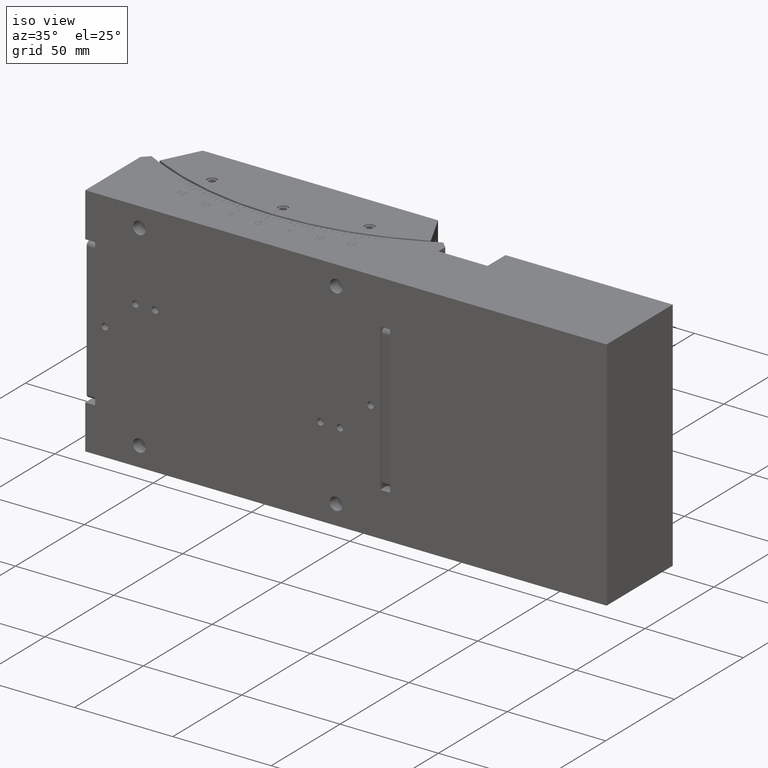
[diagram: clean part render]
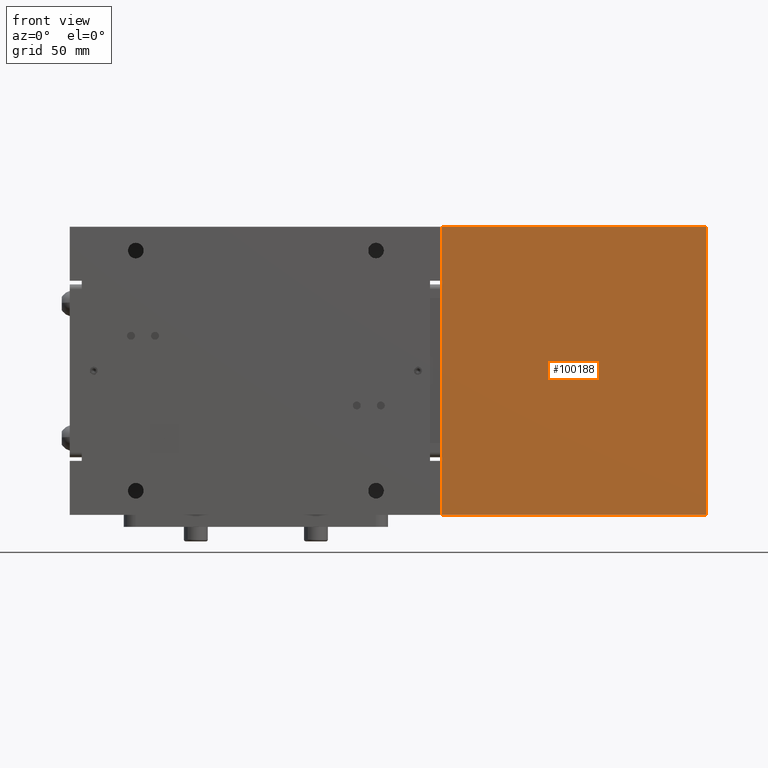
[diagram: tour spotlight — one face highlighted and labeled with its STEP entity id]
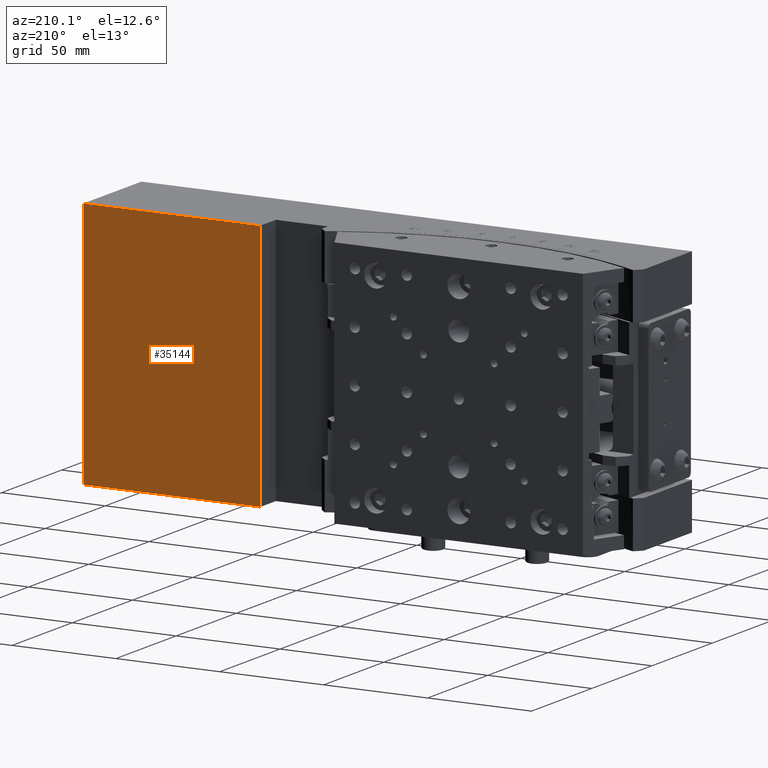
[diagram: tour spotlight — one face highlighted and labeled with its STEP entity id]
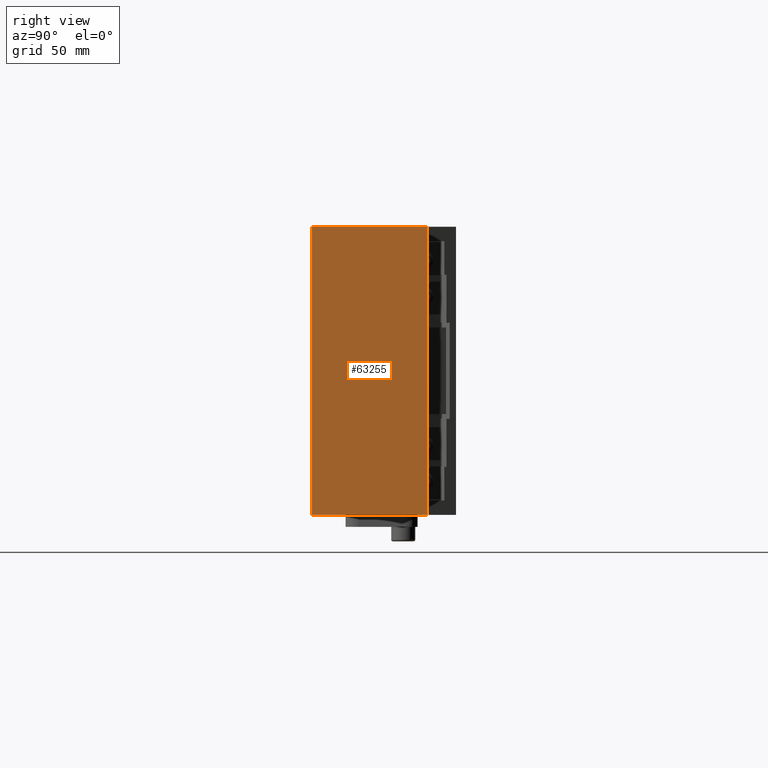
[diagram: tour spotlight — one face highlighted and labeled with its STEP entity id]
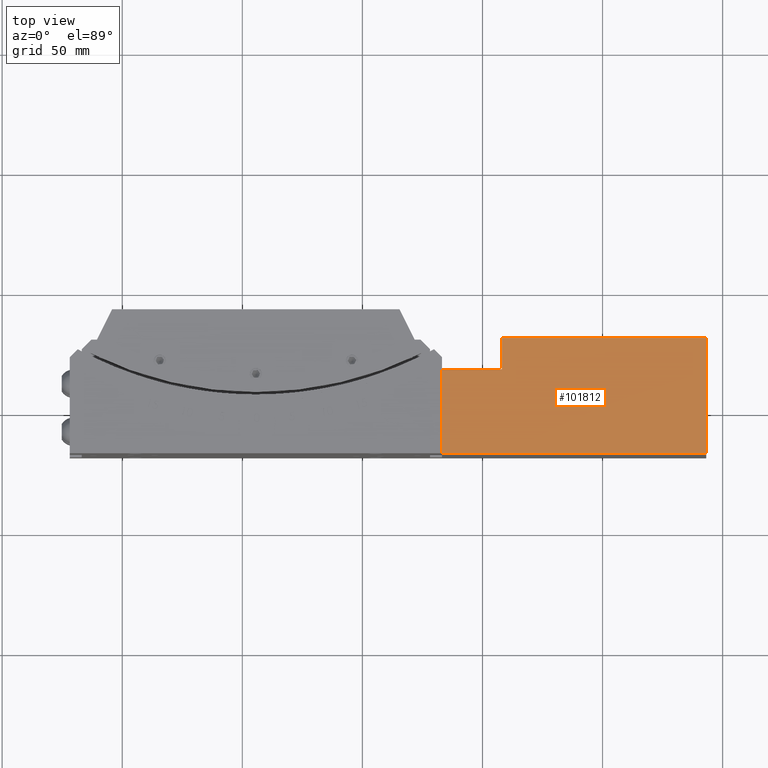
[diagram: tour spotlight — one face highlighted and labeled with its STEP entity id]
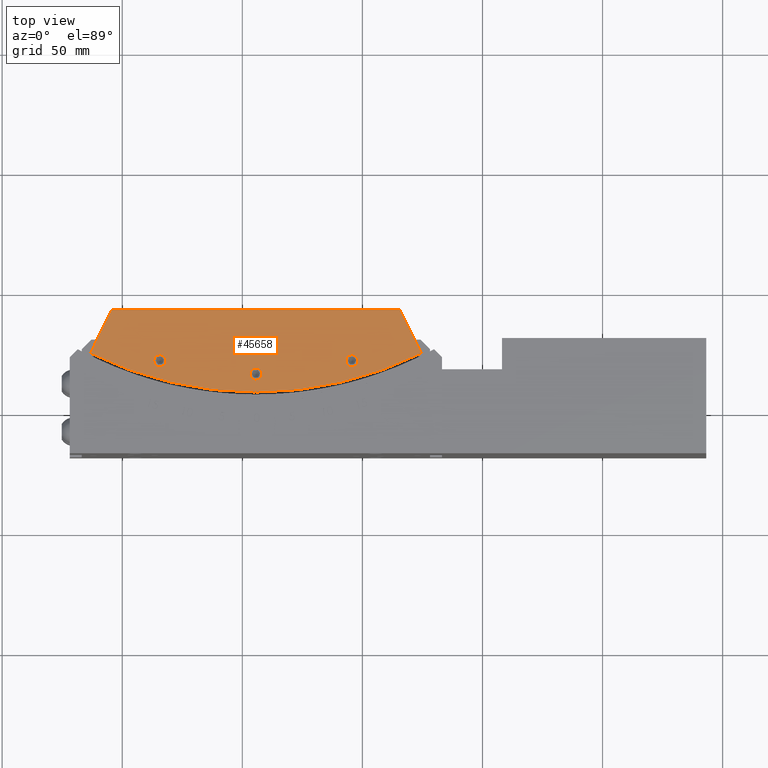
[diagram: tour spotlight — one face highlighted and labeled with its STEP entity id]
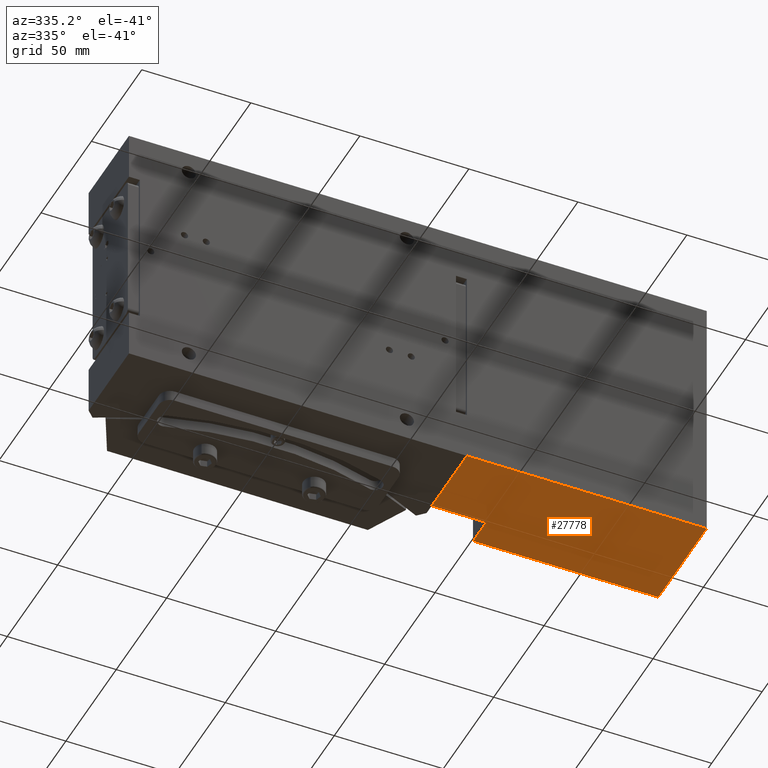
[diagram: tour spotlight — one face highlighted and labeled with its STEP entity id]
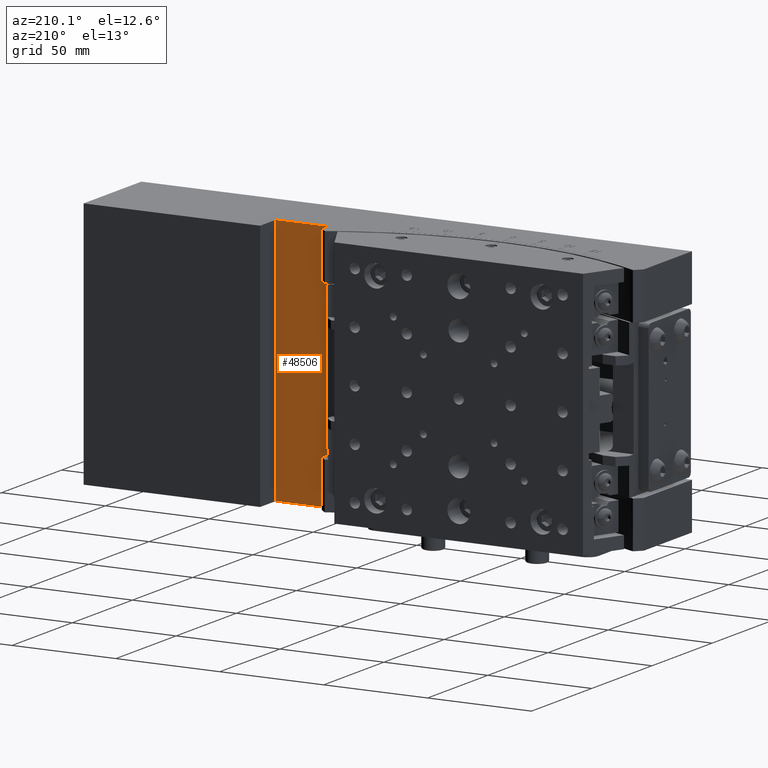
[diagram: tour spotlight — one face highlighted and labeled with its STEP entity id]
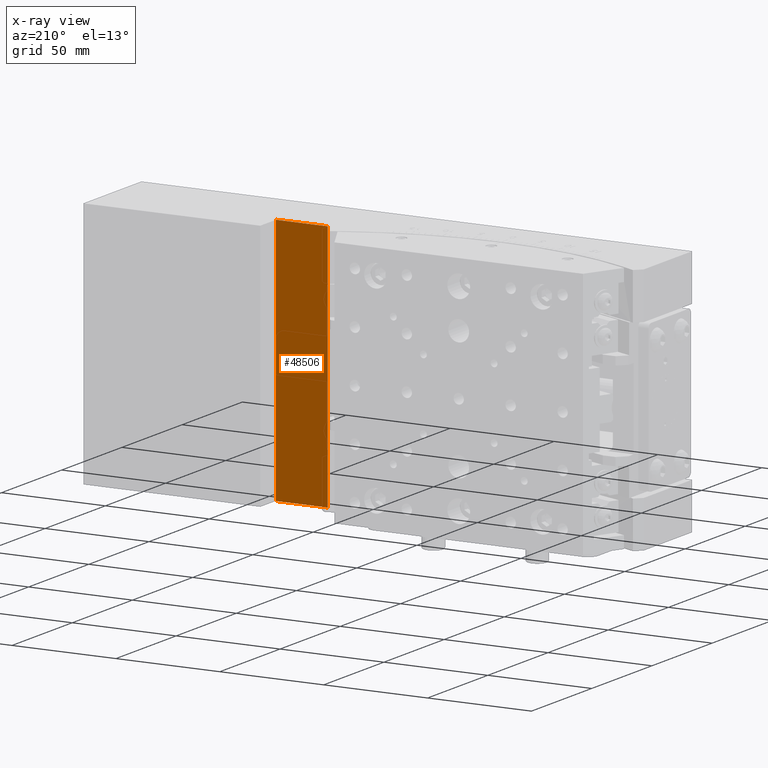
[diagram: x-ray of the same camera — body ghosted, this tour face saturated]
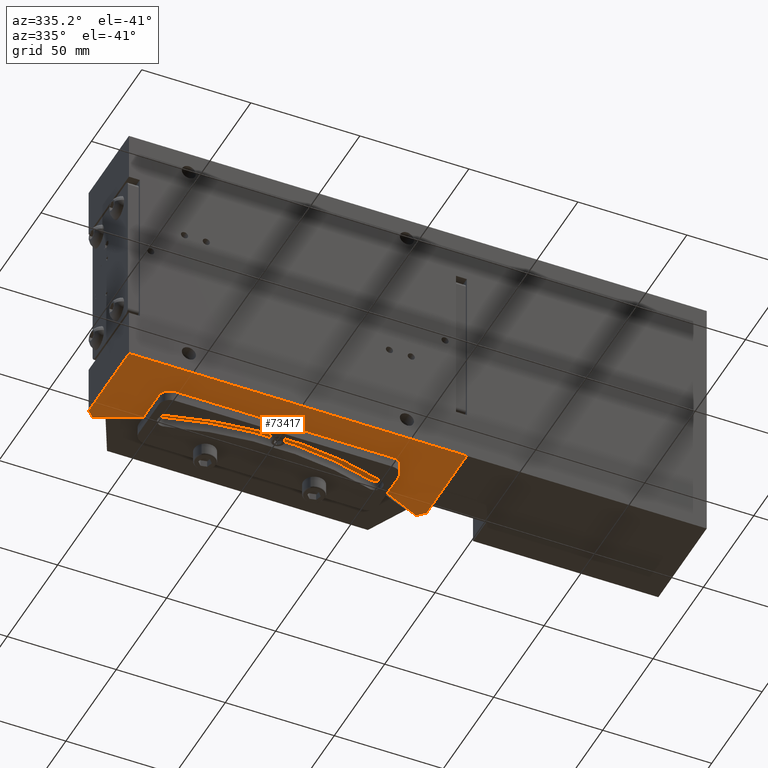
[diagram: tour spotlight — one face highlighted and labeled with its STEP entity id]
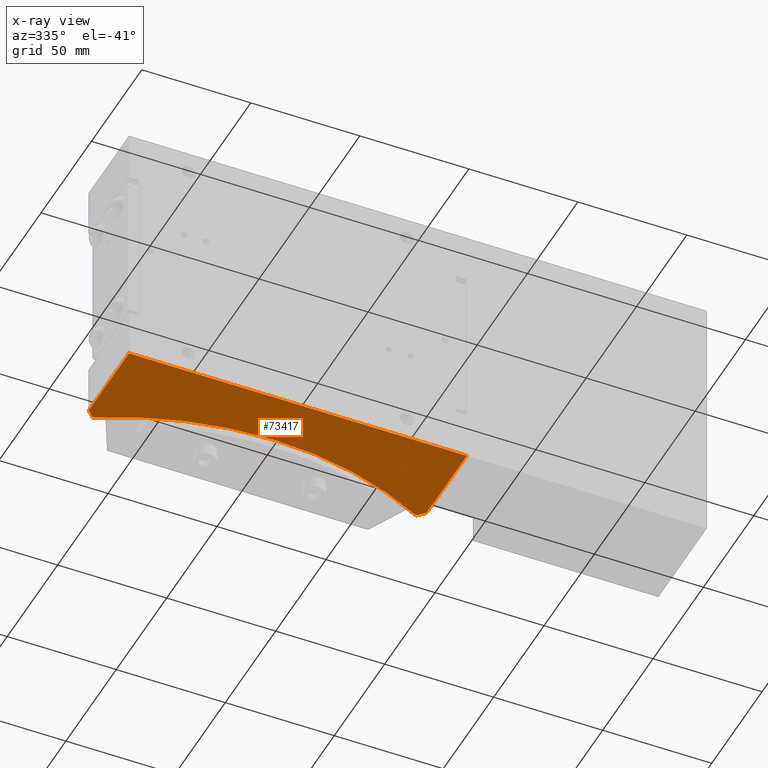
[diagram: x-ray of the same camera — body ghosted, this tour face saturated]
A machine part: a face-by-face anatomy tour. The part has 2984 B-rep faces; the first image is the clean iso view, then the 8 largest visible faces are spotlighted one at a time (largest first), each with its STEP entity span.

Face 1 — front view, entity #100188. In plain terms, the highlighted planar face has unit normal (0, -1, 0).
Definition (entity closure, byte-faithful):
#3468 = DIRECTION ( 'NONE',  ( 0.000000000000000000, 0.000000000000000000, -1.000000000000000000 ) ) ;
#4464 = CARTESIAN_POINT ( 'NONE',  ( -16.85429836251654834, -18.10616229669854960, -54.50124999999999886 ) ) ;
#11474 = FACE_OUTER_BOUND ( 'NONE', #56475, .T. ) ;
#11977 = CARTESIAN_POINT ( 'NONE',  ( -16.85429836251654834, -18.10616229669854960, -54.50124999999999886 ) ) ;
#15427 = VECTOR ( 'NONE', #56605, 1000.000000000000000 ) ;
#18746 = EDGE_CURVE ( 'NONE', #88139, #72945, #54590, .T. ) ;
#23144 = CARTESIAN_POINT ( 'NONE',  ( 93.14570163748341258, -18.10616229669854960, -54.50124999999999886 ) ) ;
#25350 = EDGE_CURVE ( 'NONE', #35237, #88139, #44248, .T. ) ;
#27877 = CARTESIAN_POINT ( 'NONE',  ( -16.85429836251654834, -18.10616229669854960, 65.49875000000000114 ) ) ;
#28013 = DIRECTION ( 'NONE',  ( 0.000000000000000000, 0.000000000000000000, -1.000000000000000000 ) ) ;
#35237 = VERTEX_POINT ( 'NONE', #72875 ) ;
#35617 = DIRECTION ( 'NONE',  ( -1.000000000000000000, 0.000000000000000000, -1.261617073437677999E-16 ) ) ;
#38749 = VECTOR ( 'NONE', #35617, 1000.000000000000000 ) ;
#44248 = LINE ( 'NONE', #4464, #77187 ) ;
#46852 = CARTESIAN_POINT ( 'NONE',  ( -16.85429836251654834, -18.10616229669854960, -54.50124999999999886 ) ) ;
#52370 = ORIENTED_EDGE ( 'NONE', *, *, #86396, .T. ) ;
#53155 = LINE ( 'NONE', #84650, #59038 ) ;
#54590 = LINE ( 'NONE', #46852, #15427 ) ;
#56475 = EDGE_LOOP ( 'NONE', ( #74202, #52370, #96082, #76008 ) ) ;
#56605 = DIRECTION ( 'NONE',  ( 1.000000000000000000, 0.000000000000000000, 1.224646799147351975E-16 ) ) ;
#59038 = VECTOR ( 'NONE', #69683, 1000.000000000000000 ) ;
#67190 = AXIS2_PLACEMENT_3D ( 'NONE', #11977, #67265, #28013 ) ;
#67265 = DIRECTION ( 'NONE',  ( 0.000000000000000000, -1.000000000000000000, 0.000000000000000000 ) ) ;
#69683 = DIRECTION ( 'NONE',  ( 0.000000000000000000, 0.000000000000000000, 1.000000000000000000 ) ) ;
#72875 = CARTESIAN_POINT ( 'NONE',  ( -16.85429836251654834, -18.10616229669854960, 65.49875000000000114 ) ) ;
#72945 = VERTEX_POINT ( 'NONE', #23144 ) ;
#72973 = PLANE ( 'NONE',  #67190 ) ;
#74202 = ORIENTED_EDGE ( 'NONE', *, *, #18746, .T. ) ;
#76008 = ORIENTED_EDGE ( 'NONE', *, *, #25350, .T. ) ;
#76715 = EDGE_CURVE ( 'NONE', #99844, #35237, #82101, .T. ) ;
#77187 = VECTOR ( 'NONE', #3468, 1000.000000000000000 ) ;
#79217 = CARTESIAN_POINT ( 'NONE',  ( -16.85429836251654834, -18.10616229669854960, -54.50124999999999886 ) ) ;
#82101 = LINE ( 'NONE', #27877, #38749 ) ;
#84650 = CARTESIAN_POINT ( 'NONE',  ( 93.14570163748341258, -18.10616229669854960, -54.50124999999999886 ) ) ;
#86396 = EDGE_CURVE ( 'NONE', #72945, #99844, #53155, .T. ) ;
#87527 = CARTESIAN_POINT ( 'NONE',  ( 93.14570163748341258, -18.10616229669854960, 65.49875000000000114 ) ) ;
#88139 = VERTEX_POINT ( 'NONE', #79217 ) ;
#96082 = ORIENTED_EDGE ( 'NONE', *, *, #76715, .T. ) ;
#99844 = VERTEX_POINT ( 'NONE', #87527 ) ;
#100188 = ADVANCED_FACE ( 'NONE', ( #11474 ), #72973, .T. ) ;

Face 2 — auxiliary view, entity #35144. In plain terms, the highlighted planar face has unit normal (0, -1, 0).
Definition (entity closure, byte-faithful):
#544 = PLANE ( 'NONE',  #89025 ) ;
#3922 = CARTESIAN_POINT ( 'NONE',  ( -16.85429836251654834, 29.89383770330144685, 65.49875000000000114 ) ) ;
#7272 = VERTEX_POINT ( 'NONE', #55581 ) ;
#7967 = CARTESIAN_POINT ( 'NONE',  ( -16.85429836251654834, 29.89383770330144685, -54.50124999999999886 ) ) ;
#13286 = EDGE_CURVE ( 'NONE', #31645, #68671, #43202, .T. ) ;
#15329 = ORIENTED_EDGE ( 'NONE', *, *, #73190, .F. ) ;
#21464 = EDGE_CURVE ( 'NONE', #101499, #31645, #65788, .T. ) ;
#23444 = DIRECTION ( 'NONE',  ( 1.000000000000000000, 0.000000000000000000, 1.224646799147351975E-16 ) ) ;
#26504 = CARTESIAN_POINT ( 'NONE',  ( 93.14570163748341258, 29.89383770330144685, -54.50124999999999886 ) ) ;
#27528 = DIRECTION ( 'NONE',  ( 0.000000000000000000, 0.000000000000000000, 1.000000000000000000 ) ) ;
#31645 = VERTEX_POINT ( 'NONE', #60932 ) ;
#34027 = VECTOR ( 'NONE', #27528, 1000.000000000000000 ) ;
#35144 = ADVANCED_FACE ( 'NONE', ( #39837 ), #544, .F. ) ;
#39406 = VECTOR ( 'NONE', #75724, 1000.000000000000000 ) ;
#39837 = FACE_OUTER_BOUND ( 'NONE', #81199, .T. ) ;
#43202 = LINE ( 'NONE', #3922, #39406 ) ;
#47749 = LINE ( 'NONE', #7967, #62956 ) ;
#52440 = EDGE_CURVE ( 'NONE', #7272, #68671, #100848, .T. ) ;
#54811 = DIRECTION ( 'NONE',  ( 0.000000000000000000, -1.000000000000000000, 0.000000000000000000 ) ) ;
#55581 = CARTESIAN_POINT ( 'NONE',  ( 8.145701637483439228, 29.89383770330144685, -54.50124999999999886 ) ) ;
#56694 = VECTOR ( 'NONE', #94579, 1000.000000000000000 ) ;
#57927 = ORIENTED_EDGE ( 'NONE', *, *, #21464, .F. ) ;
#60932 = CARTESIAN_POINT ( 'NONE',  ( 93.14570163748341258, 29.89383770330144685, 65.49875000000000114 ) ) ;
#62956 = VECTOR ( 'NONE', #23444, 1000.000000000000000 ) ;
#65176 = ORIENTED_EDGE ( 'NONE', *, *, #13286, .F. ) ;
#65788 = LINE ( 'NONE', #26504, #34027 ) ;
#68671 = VERTEX_POINT ( 'NONE', #78771 ) ;
#68721 = ORIENTED_EDGE ( 'NONE', *, *, #52440, .T. ) ;
#69837 = CARTESIAN_POINT ( 'NONE',  ( 8.145701637483439228, 29.89383770330144685, -54.50124999999999886 ) ) ;
#70330 = CARTESIAN_POINT ( 'NONE',  ( -16.85429836251654834, 29.89383770330144685, -54.50124999999999886 ) ) ;
#73190 = EDGE_CURVE ( 'NONE', #7272, #101499, #47749, .T. ) ;
#75724 = DIRECTION ( 'NONE',  ( -1.000000000000000000, 0.000000000000000000, -1.261617073437677999E-16 ) ) ;
#77587 = DIRECTION ( 'NONE',  ( 0.000000000000000000, 0.000000000000000000, -1.000000000000000000 ) ) ;
#78771 = CARTESIAN_POINT ( 'NONE',  ( 8.145701637483430346, 29.89383770330144685, 65.49875000000000114 ) ) ;
#81199 = EDGE_LOOP ( 'NONE', ( #15329, #68721, #65176, #57927 ) ) ;
#83640 = CARTESIAN_POINT ( 'NONE',  ( 93.14570163748341258, 29.89383770330144685, -54.50124999999999886 ) ) ;
#89025 = AXIS2_PLACEMENT_3D ( 'NONE', #70330, #54811, #77587 ) ;
#94579 = DIRECTION ( 'NONE',  ( -1.261617073437677999E-16, 0.000000000000000000, 1.000000000000000000 ) ) ;
#100848 = LINE ( 'NONE', #69837, #56694 ) ;
#101499 = VERTEX_POINT ( 'NONE', #83640 ) ;

Face 3 — right view, entity #63255. In plain terms, the highlighted planar face has unit normal (-1, 0, 0).
Definition (entity closure, byte-faithful):
#6683 = DIRECTION ( 'NONE',  ( -1.000000000000000000, 0.000000000000000000, 0.000000000000000000 ) ) ;
#18336 = AXIS2_PLACEMENT_3D ( 'NONE', #93442, #6683, #70214 ) ;
#21464 = EDGE_CURVE ( 'NONE', #101499, #31645, #65788, .T. ) ;
#23144 = CARTESIAN_POINT ( 'NONE',  ( 93.14570163748341258, -18.10616229669854960, -54.50124999999999886 ) ) ;
#24387 = ORIENTED_EDGE ( 'NONE', *, *, #58365, .F. ) ;
#26504 = CARTESIAN_POINT ( 'NONE',  ( 93.14570163748341258, 29.89383770330144685, -54.50124999999999886 ) ) ;
#27507 = DIRECTION ( 'NONE',  ( 0.000000000000000000, 1.000000000000000000, 0.000000000000000000 ) ) ;
#27528 = DIRECTION ( 'NONE',  ( 0.000000000000000000, 0.000000000000000000, 1.000000000000000000 ) ) ;
#31489 = VECTOR ( 'NONE', #34431, 1000.000000000000000 ) ;
#31645 = VERTEX_POINT ( 'NONE', #60932 ) ;
#34027 = VECTOR ( 'NONE', #27528, 1000.000000000000000 ) ;
#34431 = DIRECTION ( 'NONE',  ( 0.000000000000000000, 1.000000000000000000, 0.000000000000000000 ) ) ;
#41482 = ORIENTED_EDGE ( 'NONE', *, *, #86396, .F. ) ;
#46939 = EDGE_CURVE ( 'NONE', #72945, #101499, #66431, .T. ) ;
#47468 = VECTOR ( 'NONE', #27507, 1000.000000000000000 ) ;
#53155 = LINE ( 'NONE', #84650, #59038 ) ;
#58365 = EDGE_CURVE ( 'NONE', #99844, #31645, #84293, .T. ) ;
#59038 = VECTOR ( 'NONE', #69683, 1000.000000000000000 ) ;
#59336 = EDGE_LOOP ( 'NONE', ( #83390, #24387, #41482, #80130 ) ) ;
#60932 = CARTESIAN_POINT ( 'NONE',  ( 93.14570163748341258, 29.89383770330144685, 65.49875000000000114 ) ) ;
#62478 = FACE_OUTER_BOUND ( 'NONE', #59336, .T. ) ;
#63255 = ADVANCED_FACE ( 'NONE', ( #62478 ), #77471, .F. ) ;
#65788 = LINE ( 'NONE', #26504, #34027 ) ;
#66431 = LINE ( 'NONE', #97926, #31489 ) ;
#69683 = DIRECTION ( 'NONE',  ( 0.000000000000000000, 0.000000000000000000, 1.000000000000000000 ) ) ;
#70214 = DIRECTION ( 'NONE',  ( 0.000000000000000000, 0.000000000000000000, 1.000000000000000000 ) ) ;
#72945 = VERTEX_POINT ( 'NONE', #23144 ) ;
#77471 = PLANE ( 'NONE',  #18336 ) ;
#80130 = ORIENTED_EDGE ( 'NONE', *, *, #46939, .T. ) ;
#83390 = ORIENTED_EDGE ( 'NONE', *, *, #21464, .T. ) ;
#83640 = CARTESIAN_POINT ( 'NONE',  ( 93.14570163748341258, 29.89383770330144685, -54.50124999999999886 ) ) ;
#83771 = CARTESIAN_POINT ( 'NONE',  ( 93.14570163748341258, -18.10616229669854960, 65.49875000000000114 ) ) ;
#84293 = LINE ( 'NONE', #83771, #47468 ) ;
#84650 = CARTESIAN_POINT ( 'NONE',  ( 93.14570163748341258, -18.10616229669854960, -54.50124999999999886 ) ) ;
#86396 = EDGE_CURVE ( 'NONE', #72945, #99844, #53155, .T. ) ;
#87527 = CARTESIAN_POINT ( 'NONE',  ( 93.14570163748341258, -18.10616229669854960, 65.49875000000000114 ) ) ;
#93442 = CARTESIAN_POINT ( 'NONE',  ( 93.14570163748341258, -18.10616229669854960, -54.50124999999999886 ) ) ;
#97926 = CARTESIAN_POINT ( 'NONE',  ( 93.14570163748341258, -18.10616229669854960, -54.50124999999999886 ) ) ;
#99844 = VERTEX_POINT ( 'NONE', #87527 ) ;
#101499 = VERTEX_POINT ( 'NONE', #83640 ) ;

Face 4 — top view, entity #101812. In plain terms, the highlighted planar face has unit normal (0, 0, -1).
Definition (entity closure, byte-faithful):
#3922 = CARTESIAN_POINT ( 'NONE',  ( -16.85429836251654834, 29.89383770330144685, 65.49875000000000114 ) ) ;
#6225 = CARTESIAN_POINT ( 'NONE',  ( -16.85429836251654834, -18.10616229669854960, 65.49875000000000114 ) ) ;
#7396 = DIRECTION ( 'NONE',  ( 1.000000000000000000, 1.387778780781445922E-16, 0.000000000000000000 ) ) ;
#11013 = EDGE_LOOP ( 'NONE', ( #25738, #16633, #20819, #51161, #42564, #63157 ) ) ;
#12620 = EDGE_CURVE ( 'NONE', #35237, #54821, #70772, .T. ) ;
#13063 = AXIS2_PLACEMENT_3D ( 'NONE', #82525, #90257, #33503 ) ;
#13286 = EDGE_CURVE ( 'NONE', #31645, #68671, #43202, .T. ) ;
#15604 = VERTEX_POINT ( 'NONE', #54030 ) ;
#16633 = ORIENTED_EDGE ( 'NONE', *, *, #52231, .F. ) ;
#18493 = PLANE ( 'NONE',  #13063 ) ;
#19556 = VECTOR ( 'NONE', #101265, 1000.000000000000000 ) ;
#20819 = ORIENTED_EDGE ( 'NONE', *, *, #32789, .F. ) ;
#23413 = DIRECTION ( 'NONE',  ( 0.000000000000000000, 1.000000000000000000, 0.000000000000000000 ) ) ;
#25738 = ORIENTED_EDGE ( 'NONE', *, *, #13286, .T. ) ;
#27507 = DIRECTION ( 'NONE',  ( 0.000000000000000000, 1.000000000000000000, 0.000000000000000000 ) ) ;
#27877 = CARTESIAN_POINT ( 'NONE',  ( -16.85429836251654834, -18.10616229669854960, 65.49875000000000114 ) ) ;
#31645 = VERTEX_POINT ( 'NONE', #60932 ) ;
#32789 = EDGE_CURVE ( 'NONE', #54821, #15604, #39918, .T. ) ;
#33503 = DIRECTION ( 'NONE',  ( 0.000000000000000000, -1.000000000000000000, 0.000000000000000000 ) ) ;
#35237 = VERTEX_POINT ( 'NONE', #72875 ) ;
#35617 = DIRECTION ( 'NONE',  ( -1.000000000000000000, 0.000000000000000000, -1.261617073437677999E-16 ) ) ;
#38749 = VECTOR ( 'NONE', #35617, 1000.000000000000000 ) ;
#39406 = VECTOR ( 'NONE', #75724, 1000.000000000000000 ) ;
#39918 = LINE ( 'NONE', #63686, #44139 ) ;
#42564 = ORIENTED_EDGE ( 'NONE', *, *, #76715, .F. ) ;
#43202 = LINE ( 'NONE', #3922, #39406 ) ;
#44139 = VECTOR ( 'NONE', #7396, 1000.000000000000000 ) ;
#47468 = VECTOR ( 'NONE', #27507, 1000.000000000000000 ) ;
#51161 = ORIENTED_EDGE ( 'NONE', *, *, #12620, .F. ) ;
#52231 = EDGE_CURVE ( 'NONE', #15604, #68671, #55946, .T. ) ;
#54030 = CARTESIAN_POINT ( 'NONE',  ( 8.145701637483430346, 16.89383770330145040, 65.49875000000000114 ) ) ;
#54821 = VERTEX_POINT ( 'NONE', #86103 ) ;
#55946 = LINE ( 'NONE', #94191, #74868 ) ;
#58365 = EDGE_CURVE ( 'NONE', #99844, #31645, #84293, .T. ) ;
#60932 = CARTESIAN_POINT ( 'NONE',  ( 93.14570163748341258, 29.89383770330144685, 65.49875000000000114 ) ) ;
#63157 = ORIENTED_EDGE ( 'NONE', *, *, #58365, .T. ) ;
#63686 = CARTESIAN_POINT ( 'NONE',  ( -16.85429836251660163, 16.89383770330145040, 65.49875000000000114 ) ) ;
#68671 = VERTEX_POINT ( 'NONE', #78771 ) ;
#70772 = LINE ( 'NONE', #6225, #19556 ) ;
#72875 = CARTESIAN_POINT ( 'NONE',  ( -16.85429836251654834, -18.10616229669854960, 65.49875000000000114 ) ) ;
#74771 = FACE_OUTER_BOUND ( 'NONE', #11013, .T. ) ;
#74868 = VECTOR ( 'NONE', #23413, 1000.000000000000000 ) ;
#75724 = DIRECTION ( 'NONE',  ( -1.000000000000000000, 0.000000000000000000, -1.261617073437677999E-16 ) ) ;
#76715 = EDGE_CURVE ( 'NONE', #99844, #35237, #82101, .T. ) ;
#78771 = CARTESIAN_POINT ( 'NONE',  ( 8.145701637483430346, 29.89383770330144685, 65.49875000000000114 ) ) ;
#82101 = LINE ( 'NONE', #27877, #38749 ) ;
#82525 = CARTESIAN_POINT ( 'NONE',  ( -16.85429836251654834, -18.10616229669854960, 65.49875000000000114 ) ) ;
#83771 = CARTESIAN_POINT ( 'NONE',  ( 93.14570163748341258, -18.10616229669854960, 65.49875000000000114 ) ) ;
#84293 = LINE ( 'NONE', #83771, #47468 ) ;
#86103 = CARTESIAN_POINT ( 'NONE',  ( -16.85429836251660163, 16.89383770330145040, 65.49875000000000114 ) ) ;
#87527 = CARTESIAN_POINT ( 'NONE',  ( 93.14570163748341258, -18.10616229669854960, 65.49875000000000114 ) ) ;
#90257 = DIRECTION ( 'NONE',  ( 1.261617073437677999E-16, 0.000000000000000000, -1.000000000000000000 ) ) ;
#94191 = CARTESIAN_POINT ( 'NONE',  ( 8.145701637483430346, 29.89383770330144685, 65.49875000000000114 ) ) ;
#99844 = VERTEX_POINT ( 'NONE', #87527 ) ;
#101265 = DIRECTION ( 'NONE',  ( 0.000000000000000000, 1.000000000000000000, 0.000000000000000000 ) ) ;
#101812 = ADVANCED_FACE ( 'NONE', ( #74771 ), #18493, .F. ) ;

Face 5 — top view, entity #45658. In plain terms, the highlighted planar face has unit normal (0, -0, 1).
Definition (entity closure, byte-faithful):
#163 = CIRCLE ( 'NONE', #100789, 154.4999999999999432 ) ;
#289 = CARTESIAN_POINT ( 'NONE',  ( -134.3598981322944041, 20.44224885729239816, 65.49875000000000114 ) ) ;
#1010 = VERTEX_POINT ( 'NONE', #30794 ) ;
#1721 = VECTOR ( 'NONE', #15102, 1000.000000000000227 ) ;
#2036 = CARTESIAN_POINT ( 'NONE',  ( -25.42220997326289833, 23.62374986686385014, 65.49875000000000114 ) ) ;
#2566 = VECTOR ( 'NONE', #98212, 1000.000000000000227 ) ;
#2776 = CARTESIAN_POINT ( 'NONE',  ( -54.35989819498179543, 20.43908184391320049, 65.49875000000000114 ) ) ;
#4180 = LINE ( 'NONE', #82196, #2566 ) ;
#4479 = EDGE_CURVE ( 'NONE', #58223, #23777, #81060, .T. ) ;
#4895 = CIRCLE ( 'NONE', #62655, 2.499999999999992895 ) ;
#5717 = VERTEX_POINT ( 'NONE', #50472 ) ;
#7610 = FACE_OUTER_BOUND ( 'NONE', #32432, .T. ) ;
#8112 = CARTESIAN_POINT ( 'NONE',  ( -54.35989819498179543, 20.43908184391320049, 65.49875000000000114 ) ) ;
#9637 = DIRECTION ( 'NONE',  ( -0.4462332411238810748, -0.8949166969702130325, -1.118870530352859933E-23 ) ) ;
#10108 = ORIENTED_EDGE ( 'NONE', *, *, #29299, .F. ) ;
#10139 = CARTESIAN_POINT ( 'NONE',  ( -154.1888418021150073, 41.89620631926730709, 65.49875000000000114 ) ) ;
#11308 = ORIENTED_EDGE ( 'NONE', *, *, #58706, .F. ) ;
#11312 = VECTOR ( 'NONE', #65137, 1000.000000000000227 ) ;
#11953 = CARTESIAN_POINT ( 'NONE',  ( -94.46041465574560902, 7.393874145595839664, 65.49875000000000114 ) ) ;
#13696 = DIRECTION ( 'NONE',  ( 0.9999999992164083640, -3.958766723997548284E-05, 0.000000000000000000 ) ) ;
#15102 = DIRECTION ( 'NONE',  ( -3.958766724046195758E-05, -0.9999999992164082530, -1.713813869590605198E-23 ) ) ;
#15615 = VERTEX_POINT ( 'NONE', #23027 ) ;
#18175 = EDGE_CURVE ( 'NONE', #72509, #66182, #79645, .T. ) ;
#21590 = FACE_BOUND ( 'NONE', #94937, .T. ) ;
#23027 = CARTESIAN_POINT ( 'NONE',  ( -94.46021663948359048, 12.39584257985405991, 65.49875000000000114 ) ) ;
#23777 = VERTEX_POINT ( 'NONE', #2036 ) ;
#24243 = CARTESIAN_POINT ( 'NONE',  ( -34.52925596305554734, 41.89146927539730569, 65.49875000000000114 ) ) ;
#26040 = DIRECTION ( 'NONE',  ( -1.317994238828538081E-27, -3.329305133844140033E-23, 1.000000000000000000 ) ) ;
#27072 = DIRECTION ( 'NONE',  ( 0.9999999992164083640, -3.958766723997548284E-05, 0.000000000000000000 ) ) ;
#29002 = ORIENTED_EDGE ( 'NONE', *, *, #47060, .T. ) ;
#29299 = EDGE_CURVE ( 'NONE', #1010, #15615, #51144, .T. ) ;
#29368 = DIRECTION ( 'NONE',  ( 9.296808944512080757E-24, -3.329341942959690561E-23, 1.000000000000000000 ) ) ;
#30255 = VERTEX_POINT ( 'NONE', #11953 ) ;
#30609 = CARTESIAN_POINT ( 'NONE',  ( -94.36011774960090293, 14.89383781848927946, 65.49875000000000114 ) ) ;
#30794 = CARTESIAN_POINT ( 'NONE',  ( -96.86011774764190818, 14.89393678765738116, 65.49875000000000114 ) ) ;
#31341 = AXIS2_PLACEMENT_3D ( 'NONE', #77384, #29368, #31413 ) ;
#31413 = DIRECTION ( 'NONE',  ( 0.000000000000000000, -1.000000000000000000, -3.329341942959690561E-23 ) ) ;
#31713 = CARTESIAN_POINT ( 'NONE',  ( -51.85989819694080438, 20.43898287474510056, 65.49875000000000114 ) ) ;
#32046 = DIRECTION ( 'NONE',  ( -1.317994238828540054E-27, -3.329305133844140033E-23, 1.000000000000000000 ) ) ;
#32386 = AXIS2_PLACEMENT_3D ( 'NONE', #8112, #55595, #87108 ) ;
#32432 = EDGE_LOOP ( 'NONE', ( #41076, #55710, #39480, #42469, #35342, #78586, #29002, #87712, #10108, #45244 ) ) ;
#34097 = CARTESIAN_POINT ( 'NONE',  ( -154.1888418021150073, 41.89620631926730709, 65.49875000000000114 ) ) ;
#34688 = DIRECTION ( 'NONE',  ( 0.9999999992164083640, -3.958766724015972267E-05, 0.000000000000000000 ) ) ;
#35175 = CARTESIAN_POINT ( 'NONE',  ( -134.3598981322944041, 20.44224885729239816, 65.49875000000000114 ) ) ;
#35218 = EDGE_CURVE ( 'NONE', #62970, #69036, #96110, .T. ) ;
#35342 = ORIENTED_EDGE ( 'NONE', *, *, #35218, .T. ) ;
#36675 = VERTEX_POINT ( 'NONE', #50653 ) ;
#36716 = EDGE_CURVE ( 'NONE', #83962, #88799, #4895, .T. ) ;
#36751 = VECTOR ( 'NONE', #95013, 1000.000000000000000 ) ;
#37954 = CARTESIAN_POINT ( 'NONE',  ( -94.26041465590239454, 7.393866228062390356, 65.49875000000000114 ) ) ;
#39156 = EDGE_CURVE ( 'NONE', #98287, #5717, #64834, .T. ) ;
#39357 = EDGE_CURVE ( 'NONE', #23777, #62970, #47017, .T. ) ;
#39390 = EDGE_CURVE ( 'NONE', #66182, #1010, #94454, .T. ) ;
#39480 = ORIENTED_EDGE ( 'NONE', *, *, #4479, .T. ) ;
#40369 = DIRECTION ( 'NONE',  ( 0.9999999992164083640, -3.958766724015972267E-05, 0.000000000000000000 ) ) ;
#41076 = ORIENTED_EDGE ( 'NONE', *, *, #18175, .F. ) ;
#41208 = ORIENTED_EDGE ( 'NONE', *, *, #36716, .F. ) ;
#42469 = ORIENTED_EDGE ( 'NONE', *, *, #39357, .T. ) ;
#43377 = AXIS2_PLACEMENT_3D ( 'NONE', #2776, #26040, #73048 ) ;
#43449 = CARTESIAN_POINT ( 'NONE',  ( -94.36011774960090293, 14.89383781848927946, 65.49875000000000114 ) ) ;
#45244 = ORIENTED_EDGE ( 'NONE', *, *, #39390, .F. ) ;
#45658 = ADVANCED_FACE ( 'NONE', ( #21590, #93358, #7610 ), #93871, .T. ) ;
#47017 = LINE ( 'NONE', #24243, #36751 ) ;
#47060 = EDGE_CURVE ( 'NONE', #36675, #30255, #163, .T. ) ;
#47793 = ORIENTED_EDGE ( 'NONE', *, *, #54963, .F. ) ;
#48104 = EDGE_CURVE ( 'NONE', #69036, #36675, #80912, .T. ) ;
#49822 = DIRECTION ( 'NONE',  ( -1.317994238822410035E-27, -3.329305133844145323E-23, 1.000000000000000000 ) ) ;
#50332 = CARTESIAN_POINT ( 'NONE',  ( -94.35429836251660163, 161.8938377033014717, 65.49875000000000114 ) ) ;
#50472 = CARTESIAN_POINT ( 'NONE',  ( -56.85989819302280068, 20.43918081308129686, 65.49875000000000114 ) ) ;
#50653 = CARTESIAN_POINT ( 'NONE',  ( -163.2973341161564917, 23.62920802140344634, 65.49875000000000114 ) ) ;
#51144 = CIRCLE ( 'NONE', #89015, 2.499999999999992895 ) ;
#51207 = DIRECTION ( 'NONE',  ( -1.317994238828540054E-27, -3.329305133844140033E-23, 1.000000000000000000 ) ) ;
#51929 = DIRECTION ( 'NONE',  ( -1.317994238822410035E-27, -3.329305133844145323E-23, 1.000000000000000000 ) ) ;
#54559 = DIRECTION ( 'NONE',  ( -1.317994238828540054E-27, -3.329305133844140033E-23, 1.000000000000000000 ) ) ;
#54963 = EDGE_CURVE ( 'NONE', #5717, #98287, #78550, .T. ) ;
#55595 = DIRECTION ( 'NONE',  ( -1.317994238828538081E-27, -3.329305133844140033E-23, 1.000000000000000000 ) ) ;
#55710 = ORIENTED_EDGE ( 'NONE', *, *, #69975, .T. ) ;
#58223 = VERTEX_POINT ( 'NONE', #37954 ) ;
#58706 = EDGE_CURVE ( 'NONE', #88799, #83962, #88756, .T. ) ;
#61542 = AXIS2_PLACEMENT_3D ( 'NONE', #64046, #32046, #72299 ) ;
#62105 = DIRECTION ( 'NONE',  ( -1.317994238828540054E-27, -3.329305133844140033E-23, 1.000000000000000000 ) ) ;
#62655 = AXIS2_PLACEMENT_3D ( 'NONE', #35175, #95621, #34688 ) ;
#62970 = VERTEX_POINT ( 'NONE', #89377 ) ;
#64046 = CARTESIAN_POINT ( 'NONE',  ( -94.36011774960090293, 14.89383781848927946, 65.49875000000000114 ) ) ;
#64834 = CIRCLE ( 'NONE', #43377, 2.500000000000000000 ) ;
#64844 = AXIS2_PLACEMENT_3D ( 'NONE', #30609, #62105, #40369 ) ;
#65137 = DIRECTION ( 'NONE',  ( -0.9999999992164082530, 3.958766723994136435E-05, 9.298126946036841525E-24 ) ) ;
#66182 = VERTEX_POINT ( 'NONE', #79625 ) ;
#67937 = VECTOR ( 'NONE', #9637, 1000.000000000000227 ) ;
#69036 = VERTEX_POINT ( 'NONE', #34097 ) ;
#69975 = EDGE_CURVE ( 'NONE', #72509, #58223, #99329, .T. ) ;
#71936 = ORIENTED_EDGE ( 'NONE', *, *, #39156, .F. ) ;
#72299 = DIRECTION ( 'NONE',  ( 0.9999999992164083640, -3.958766724015972267E-05, 0.000000000000000000 ) ) ;
#72509 = VERTEX_POINT ( 'NONE', #93144 ) ;
#73048 = DIRECTION ( 'NONE',  ( 0.9999999992164083640, -3.958766724015960747E-05, 0.000000000000000000 ) ) ;
#75461 = CARTESIAN_POINT ( 'NONE',  ( -136.8598981303353810, 20.44234782646050164, 65.49875000000000114 ) ) ;
#77384 = CARTESIAN_POINT ( 'NONE',  ( -94.35429836251660163, 161.8938377033014717, 65.49875000000000114 ) ) ;
#78550 = CIRCLE ( 'NONE', #32386, 2.500000000000000000 ) ;
#78586 = ORIENTED_EDGE ( 'NONE', *, *, #48104, .T. ) ;
#79625 = CARTESIAN_POINT ( 'NONE',  ( -91.86011775155979819, 14.89373884932117953, 65.49875000000000114 ) ) ;
#79645 = CIRCLE ( 'NONE', #64844, 2.499999999999992895 ) ;
#80912 = LINE ( 'NONE', #10139, #67937 ) ;
#81060 = CIRCLE ( 'NONE', #94234, 154.4999999999999432 ) ;
#82196 = CARTESIAN_POINT ( 'NONE',  ( -94.46009795440770063, 15.39387413932709947, 65.49875000000000114 ) ) ;
#83735 = EDGE_CURVE ( 'NONE', #30255, #15615, #4180, .T. ) ;
#83962 = VERTEX_POINT ( 'NONE', #75461 ) ;
#84460 = CARTESIAN_POINT ( 'NONE',  ( -94.35429836251660163, 161.8938377033014717, 65.49875000000000114 ) ) ;
#84732 = DIRECTION ( 'NONE',  ( 0.9999999992164083640, -3.958766724015972267E-05, 0.000000000000000000 ) ) ;
#87108 = DIRECTION ( 'NONE',  ( 0.9999999992164083640, -3.958766724015960747E-05, 0.000000000000000000 ) ) ;
#87712 = ORIENTED_EDGE ( 'NONE', *, *, #83735, .T. ) ;
#88089 = DIRECTION ( 'NONE',  ( 0.9999999992164083640, -3.958766724015972267E-05, 0.000000000000000000 ) ) ;
#88756 = CIRCLE ( 'NONE', #101974, 2.499999999999992895 ) ;
#88799 = VERTEX_POINT ( 'NONE', #99388 ) ;
#89015 = AXIS2_PLACEMENT_3D ( 'NONE', #43449, #51207, #84732 ) ;
#89377 = CARTESIAN_POINT ( 'NONE',  ( -34.52925596305554734, 41.89146927539730569, 65.49875000000000114 ) ) ;
#93144 = CARTESIAN_POINT ( 'NONE',  ( -94.26021663964030495, 12.39583466232060083, 65.49875000000000114 ) ) ;
#93358 = FACE_BOUND ( 'NONE', #95324, .T. ) ;
#93871 = PLANE ( 'NONE',  #31341 ) ;
#94234 = AXIS2_PLACEMENT_3D ( 'NONE', #50332, #49822, #27072 ) ;
#94454 = CIRCLE ( 'NONE', #61542, 2.499999999999992895 ) ;
#94937 = EDGE_LOOP ( 'NONE', ( #11308, #41208 ) ) ;
#95013 = DIRECTION ( 'NONE',  ( -0.4461623843964632741, 0.8949520248313105331, 1.948631312220664040E-23 ) ) ;
#95324 = EDGE_LOOP ( 'NONE', ( #71936, #47793 ) ) ;
#95621 = DIRECTION ( 'NONE',  ( -1.317994238828540054E-27, -3.329305133844140033E-23, 1.000000000000000000 ) ) ;
#96110 = LINE ( 'NONE', #97138, #11312 ) ;
#97138 = CARTESIAN_POINT ( 'NONE',  ( -154.1888418021150073, 41.89620631926730709, 65.49875000000000114 ) ) ;
#98212 = DIRECTION ( 'NONE',  ( 3.958766723966570595E-05, 0.9999999992164082530, 1.713813869590605198E-23 ) ) ;
#98287 = VERTEX_POINT ( 'NONE', #31713 ) ;
#99329 = LINE ( 'NONE', #100878, #1721 ) ;
#99388 = CARTESIAN_POINT ( 'NONE',  ( -131.8598981342534273, 20.44214988812429823, 65.49875000000000114 ) ) ;
#100789 = AXIS2_PLACEMENT_3D ( 'NONE', #84460, #51929, #13696 ) ;
#100878 = CARTESIAN_POINT ( 'NONE',  ( -94.26009795456440088, 15.39386622179365105, 65.49875000000000114 ) ) ;
#101974 = AXIS2_PLACEMENT_3D ( 'NONE', #289, #54559, #88089 ) ;

Face 6 — auxiliary view, entity #27778. In plain terms, the highlighted planar face has unit normal (-0, 0, 1).
Definition (entity closure, byte-faithful):
#3990 = EDGE_CURVE ( 'NONE', #67841, #55000, #92491, .T. ) ;
#4676 = CARTESIAN_POINT ( 'NONE',  ( -16.85429836251654834, -18.10616229669854960, -54.50124999999999886 ) ) ;
#7272 = VERTEX_POINT ( 'NONE', #55581 ) ;
#7967 = CARTESIAN_POINT ( 'NONE',  ( -16.85429836251654834, 29.89383770330144685, -54.50124999999999886 ) ) ;
#11197 = LINE ( 'NONE', #73716, #95155 ) ;
#15427 = VECTOR ( 'NONE', #56605, 1000.000000000000000 ) ;
#17526 = CARTESIAN_POINT ( 'NONE',  ( -16.85429836251654834, 16.89383770330145040, -54.50124999999999886 ) ) ;
#18746 = EDGE_CURVE ( 'NONE', #88139, #72945, #54590, .T. ) ;
#18953 = DIRECTION ( 'NONE',  ( 0.000000000000000000, 1.000000000000000000, 0.000000000000000000 ) ) ;
#22098 = EDGE_LOOP ( 'NONE', ( #71500, #62031, #68803, #68479, #76304, #89187 ) ) ;
#23144 = CARTESIAN_POINT ( 'NONE',  ( 93.14570163748341258, -18.10616229669854960, -54.50124999999999886 ) ) ;
#23444 = DIRECTION ( 'NONE',  ( 1.000000000000000000, 0.000000000000000000, 1.224646799147351975E-16 ) ) ;
#26638 = LINE ( 'NONE', #79858, #84459 ) ;
#27778 = ADVANCED_FACE ( 'NONE', ( #43941 ), #75451, .F. ) ;
#31489 = VECTOR ( 'NONE', #34431, 1000.000000000000000 ) ;
#34431 = DIRECTION ( 'NONE',  ( 0.000000000000000000, 1.000000000000000000, 0.000000000000000000 ) ) ;
#43941 = FACE_OUTER_BOUND ( 'NONE', #22098, .T. ) ;
#46852 = CARTESIAN_POINT ( 'NONE',  ( -16.85429836251654834, -18.10616229669854960, -54.50124999999999886 ) ) ;
#46939 = EDGE_CURVE ( 'NONE', #72945, #101499, #66431, .T. ) ;
#47749 = LINE ( 'NONE', #7967, #62956 ) ;
#54590 = LINE ( 'NONE', #46852, #15427 ) ;
#55000 = VERTEX_POINT ( 'NONE', #57656 ) ;
#55581 = CARTESIAN_POINT ( 'NONE',  ( 8.145701637483439228, 29.89383770330144685, -54.50124999999999886 ) ) ;
#56605 = DIRECTION ( 'NONE',  ( 1.000000000000000000, 0.000000000000000000, 1.224646799147351975E-16 ) ) ;
#57656 = CARTESIAN_POINT ( 'NONE',  ( 8.145701637483439228, 16.89383770330145040, -54.50124999999999886 ) ) ;
#62031 = ORIENTED_EDGE ( 'NONE', *, *, #64612, .T. ) ;
#62956 = VECTOR ( 'NONE', #23444, 1000.000000000000000 ) ;
#64612 = EDGE_CURVE ( 'NONE', #55000, #7272, #26638, .T. ) ;
#66431 = LINE ( 'NONE', #97926, #31489 ) ;
#67714 = DIRECTION ( 'NONE',  ( -1.224646799147351975E-16, 0.000000000000000000, 1.000000000000000000 ) ) ;
#67841 = VERTEX_POINT ( 'NONE', #17526 ) ;
#68479 = ORIENTED_EDGE ( 'NONE', *, *, #46939, .F. ) ;
#68803 = ORIENTED_EDGE ( 'NONE', *, *, #73190, .T. ) ;
#69769 = DIRECTION ( 'NONE',  ( 1.000000000000000000, 1.387778780781445922E-16, 0.000000000000000000 ) ) ;
#71500 = ORIENTED_EDGE ( 'NONE', *, *, #3990, .T. ) ;
#72636 = DIRECTION ( 'NONE',  ( 0.000000000000000000, 1.000000000000000000, 0.000000000000000000 ) ) ;
#72945 = VERTEX_POINT ( 'NONE', #23144 ) ;
#73190 = EDGE_CURVE ( 'NONE', #7272, #101499, #47749, .T. ) ;
#73716 = CARTESIAN_POINT ( 'NONE',  ( -16.85429836251654834, -18.10616229669854960, -54.50124999999999886 ) ) ;
#75451 = PLANE ( 'NONE',  #77326 ) ;
#76304 = ORIENTED_EDGE ( 'NONE', *, *, #18746, .F. ) ;
#77315 = VECTOR ( 'NONE', #69769, 1000.000000000000000 ) ;
#77326 = AXIS2_PLACEMENT_3D ( 'NONE', #4676, #67714, #78009 ) ;
#78009 = DIRECTION ( 'NONE',  ( 1.000000000000000000, 0.000000000000000000, 1.224646799147351975E-16 ) ) ;
#79217 = CARTESIAN_POINT ( 'NONE',  ( -16.85429836251654834, -18.10616229669854960, -54.50124999999999886 ) ) ;
#79858 = CARTESIAN_POINT ( 'NONE',  ( 8.145701637483439228, 29.89383770330144685, -54.50124999999999886 ) ) ;
#83640 = CARTESIAN_POINT ( 'NONE',  ( 93.14570163748341258, 29.89383770330144685, -54.50124999999999886 ) ) ;
#84459 = VECTOR ( 'NONE', #72636, 1000.000000000000000 ) ;
#85534 = EDGE_CURVE ( 'NONE', #88139, #67841, #11197, .T. ) ;
#86246 = CARTESIAN_POINT ( 'NONE',  ( -16.85429836251654834, 16.89383770330145040, -54.50124999999999886 ) ) ;
#88139 = VERTEX_POINT ( 'NONE', #79217 ) ;
#89187 = ORIENTED_EDGE ( 'NONE', *, *, #85534, .T. ) ;
#92491 = LINE ( 'NONE', #86246, #77315 ) ;
#95155 = VECTOR ( 'NONE', #18953, 1000.000000000000000 ) ;
#97926 = CARTESIAN_POINT ( 'NONE',  ( 93.14570163748341258, -18.10616229669854960, -54.50124999999999886 ) ) ;
#101499 = VERTEX_POINT ( 'NONE', #83640 ) ;

Face 7 — auxiliary view, entity #48506. An x-ray twin of the same camera follows (body ghosted, this face saturated) — the face is partly hidden behind the body. In plain terms, the highlighted planar face has unit normal (0, -1, 0).
Definition (entity closure, byte-faithful):
#3794 = ORIENTED_EDGE ( 'NONE', *, *, #62194, .F. ) ;
#3990 = EDGE_CURVE ( 'NONE', #67841, #55000, #92491, .T. ) ;
#7396 = DIRECTION ( 'NONE',  ( 1.000000000000000000, 1.387778780781445922E-16, 0.000000000000000000 ) ) ;
#12368 = ORIENTED_EDGE ( 'NONE', *, *, #32789, .T. ) ;
#15604 = VERTEX_POINT ( 'NONE', #54030 ) ;
#17526 = CARTESIAN_POINT ( 'NONE',  ( -16.85429836251654834, 16.89383770330145040, -54.50124999999999886 ) ) ;
#23844 = EDGE_LOOP ( 'NONE', ( #12368, #3794, #102276, #42684 ) ) ;
#26450 = CARTESIAN_POINT ( 'NONE',  ( 8.145701637483439228, 16.89383770330145040, -54.50124999999999886 ) ) ;
#32789 = EDGE_CURVE ( 'NONE', #54821, #15604, #39918, .T. ) ;
#33307 = AXIS2_PLACEMENT_3D ( 'NONE', #75592, #60614, #90581 ) ;
#35331 = PLANE ( 'NONE',  #33307 ) ;
#39918 = LINE ( 'NONE', #63686, #44139 ) ;
#42684 = ORIENTED_EDGE ( 'NONE', *, *, #62370, .T. ) ;
#44139 = VECTOR ( 'NONE', #7396, 1000.000000000000000 ) ;
#46042 = DIRECTION ( 'NONE',  ( -1.261617073437677999E-16, 0.000000000000000000, 1.000000000000000000 ) ) ;
#48506 = ADVANCED_FACE ( 'NONE', ( #50821 ), #35331, .F. ) ;
#50821 = FACE_OUTER_BOUND ( 'NONE', #23844, .T. ) ;
#51158 = VECTOR ( 'NONE', #46042, 1000.000000000000000 ) ;
#54030 = CARTESIAN_POINT ( 'NONE',  ( 8.145701637483430346, 16.89383770330145040, 65.49875000000000114 ) ) ;
#54821 = VERTEX_POINT ( 'NONE', #86103 ) ;
#55000 = VERTEX_POINT ( 'NONE', #57656 ) ;
#55268 = CARTESIAN_POINT ( 'NONE',  ( -16.85429836251654834, 16.89383770330145040, -54.50124999999999886 ) ) ;
#57656 = CARTESIAN_POINT ( 'NONE',  ( 8.145701637483439228, 16.89383770330145040, -54.50124999999999886 ) ) ;
#57939 = LINE ( 'NONE', #26450, #74246 ) ;
#60614 = DIRECTION ( 'NONE',  ( 1.387778780781445922E-16, -1.000000000000000000, 1.750845403988394812E-32 ) ) ;
#62194 = EDGE_CURVE ( 'NONE', #55000, #15604, #57939, .T. ) ;
#62370 = EDGE_CURVE ( 'NONE', #67841, #54821, #87279, .T. ) ;
#63686 = CARTESIAN_POINT ( 'NONE',  ( -16.85429836251660163, 16.89383770330145040, 65.49875000000000114 ) ) ;
#67841 = VERTEX_POINT ( 'NONE', #17526 ) ;
#69769 = DIRECTION ( 'NONE',  ( 1.000000000000000000, 1.387778780781445922E-16, 0.000000000000000000 ) ) ;
#74246 = VECTOR ( 'NONE', #89444, 1000.000000000000000 ) ;
#75592 = CARTESIAN_POINT ( 'NONE',  ( -16.85429836251654834, 16.89383770330145040, -54.50124999999999886 ) ) ;
#77315 = VECTOR ( 'NONE', #69769, 1000.000000000000000 ) ;
#86103 = CARTESIAN_POINT ( 'NONE',  ( -16.85429836251660163, 16.89383770330145040, 65.49875000000000114 ) ) ;
#86246 = CARTESIAN_POINT ( 'NONE',  ( -16.85429836251654834, 16.89383770330145040, -54.50124999999999886 ) ) ;
#87279 = LINE ( 'NONE', #55268, #51158 ) ;
#89444 = DIRECTION ( 'NONE',  ( -1.261617073437677999E-16, 0.000000000000000000, 1.000000000000000000 ) ) ;
#90581 = DIRECTION ( 'NONE',  ( 0.000000000000000000, -1.750845403988394812E-32, -1.000000000000000000 ) ) ;
#92491 = LINE ( 'NONE', #86246, #77315 ) ;
#102276 = ORIENTED_EDGE ( 'NONE', *, *, #3990, .F. ) ;

Face 8 — auxiliary view, entity #73417. An x-ray twin of the same camera follows (body ghosted, this face saturated) — the face is partly hidden behind the body. In plain terms, the highlighted planar face has unit normal (0, 0, 1).
Definition (entity closure, byte-faithful):
#1972 = VECTOR ( 'NONE', #14129, 999.9999999999998863 ) ;
#2420 = CARTESIAN_POINT ( 'NONE',  ( -171.8542983625165164, 43.89383770330145040, -54.50124999999999886 ) ) ;
#2975 = CIRCLE ( 'NONE', #95339, 155.5000000000000000 ) ;
#3448 = CARTESIAN_POINT ( 'NONE',  ( -20.18341570637474902, 25.22295504715974701, -54.50124999999999886 ) ) ;
#3924 = ORIENTED_EDGE ( 'NONE', *, *, #42850, .F. ) ;
#5653 = DIRECTION ( 'NONE',  ( -1.000000000000000000, 0.000000000000000000, 0.000000000000000000 ) ) ;
#5667 = AXIS2_PLACEMENT_3D ( 'NONE', #44922, #76435, #5653 ) ;
#6863 = VERTEX_POINT ( 'NONE', #68196 ) ;
#8518 = DIRECTION ( 'NONE',  ( 0.000000000000000000, 0.000000000000000000, -1.000000000000000000 ) ) ;
#11522 = VECTOR ( 'NONE', #40274, 1000.000000000000000 ) ;
#12232 = VERTEX_POINT ( 'NONE', #54550 ) ;
#14129 = DIRECTION ( 'NONE',  ( -0.7071067811865441310, -0.7071067811865510144, 0.000000000000000000 ) ) ;
#16332 = VECTOR ( 'NONE', #41901, 1000.000000000000000 ) ;
#20417 = CARTESIAN_POINT ( 'NONE',  ( -94.35429836251660163, 161.8938377033014717, -54.50124999999999886 ) ) ;
#20846 = CARTESIAN_POINT ( 'NONE',  ( -171.8542983625165164, 21.89383770330145040, -54.50124999999999886 ) ) ;
#22529 = VECTOR ( 'NONE', #26478, 1000.000000000000000 ) ;
#24837 = CARTESIAN_POINT ( 'NONE',  ( -16.85429836251660163, 21.89383770330145040, -54.50124999999999886 ) ) ;
#24859 = LINE ( 'NONE', #26407, #16332 ) ;
#25014 = AXIS2_PLACEMENT_3D ( 'NONE', #73852, #66616, #66122 ) ;
#25266 = CARTESIAN_POINT ( 'NONE',  ( -16.85429836251660163, 21.89383770330145040, -54.50124999999999886 ) ) ;
#26014 = ORIENTED_EDGE ( 'NONE', *, *, #89266, .F. ) ;
#26202 = DIRECTION ( 'NONE',  ( 0.000000000000000000, -1.000000000000000000, 0.000000000000000000 ) ) ;
#26407 = CARTESIAN_POINT ( 'NONE',  ( -218.3542983625164879, -18.10616229669854960, -54.50124999999999886 ) ) ;
#26478 = DIRECTION ( 'NONE',  ( 0.000000000000000000, 1.000000000000000000, 0.000000000000000000 ) ) ;
#27474 = EDGE_CURVE ( 'NONE', #57634, #99584, #2975, .T. ) ;
#29553 = EDGE_CURVE ( 'NONE', #62939, #99584, #50062, .T. ) ;
#29850 = ORIENTED_EDGE ( 'NONE', *, *, #31734, .F. ) ;
#31371 = VERTEX_POINT ( 'NONE', #37939 ) ;
#31734 = EDGE_CURVE ( 'NONE', #70815, #62939, #34243, .T. ) ;
#31868 = VERTEX_POINT ( 'NONE', #78931 ) ;
#33144 = EDGE_LOOP ( 'NONE', ( #54917, #3924 ) ) ;
#34243 = LINE ( 'NONE', #65752, #22529 ) ;
#37939 = CARTESIAN_POINT ( 'NONE',  ( -96.85429836251660163, 1.893837703301449960, -54.50124999999999886 ) ) ;
#40022 = DIRECTION ( 'NONE',  ( -1.000000000000000000, 0.000000000000000000, 0.000000000000000000 ) ) ;
#40202 = EDGE_CURVE ( 'NONE', #57634, #6863, #60121, .T. ) ;
#40274 = DIRECTION ( 'NONE',  ( -0.7071067811865435759, 0.7071067811865515695, 0.000000000000000000 ) ) ;
#40358 = CIRCLE ( 'NONE', #99728, 2.500000000000002220 ) ;
#41020 = EDGE_LOOP ( 'NONE', ( #92336, #93408, #66206, #63993, #29850, #26014 ) ) ;
#41695 = LINE ( 'NONE', #2420, #97587 ) ;
#41901 = DIRECTION ( 'NONE',  ( 1.000000000000000000, 0.000000000000000000, 0.000000000000000000 ) ) ;
#42850 = EDGE_CURVE ( 'NONE', #12232, #31371, #71667, .T. ) ;
#44922 = CARTESIAN_POINT ( 'NONE',  ( -94.35429836251660163, 1.893837703301449960, -54.50124999999999886 ) ) ;
#46804 = CARTESIAN_POINT ( 'NONE',  ( -168.5251810186584862, 25.22295504715980030, -54.50124999999999886 ) ) ;
#50062 = LINE ( 'NONE', #25266, #11522 ) ;
#51599 = PLANE ( 'NONE',  #25014 ) ;
#54550 = CARTESIAN_POINT ( 'NONE',  ( -91.85429836251660163, 1.893837703301449960, -54.50124999999999886 ) ) ;
#54917 = ORIENTED_EDGE ( 'NONE', *, *, #68680, .F. ) ;
#57634 = VERTEX_POINT ( 'NONE', #46804 ) ;
#60121 = LINE ( 'NONE', #20846, #1972 ) ;
#62939 = VERTEX_POINT ( 'NONE', #24837 ) ;
#63993 = ORIENTED_EDGE ( 'NONE', *, *, #29553, .F. ) ;
#65752 = CARTESIAN_POINT ( 'NONE',  ( -16.85429836251660163, -18.10616229669854960, -54.50124999999999886 ) ) ;
#66122 = DIRECTION ( 'NONE',  ( 1.000000000000000000, 0.000000000000000000, 0.000000000000000000 ) ) ;
#66206 = ORIENTED_EDGE ( 'NONE', *, *, #27474, .T. ) ;
#66436 = DIRECTION ( 'NONE',  ( 0.000000000000000000, 0.000000000000000000, 1.000000000000000000 ) ) ;
#66616 = DIRECTION ( 'NONE',  ( 0.000000000000000000, 0.000000000000000000, 1.000000000000000000 ) ) ;
#68196 = CARTESIAN_POINT ( 'NONE',  ( -171.8542983625165164, 21.89383770330145040, -54.50124999999999886 ) ) ;
#68680 = EDGE_CURVE ( 'NONE', #31371, #12232, #40358, .T. ) ;
#70815 = VERTEX_POINT ( 'NONE', #75837 ) ;
#71667 = CIRCLE ( 'NONE', #5667, 2.500000000000002220 ) ;
#73417 = ADVANCED_FACE ( 'NONE', ( #81075, #98617 ), #51599, .F. ) ;
#73852 = CARTESIAN_POINT ( 'NONE',  ( 55.64570163748339837, -18.10616229669854960, -54.50124999999999886 ) ) ;
#75837 = CARTESIAN_POINT ( 'NONE',  ( -16.85429836251660163, -18.10616229669854960, -54.50124999999999886 ) ) ;
#76435 = DIRECTION ( 'NONE',  ( 0.000000000000000000, 0.000000000000000000, -1.000000000000000000 ) ) ;
#78931 = CARTESIAN_POINT ( 'NONE',  ( -171.8542983625165164, -18.10616229669854960, -54.50124999999999886 ) ) ;
#79283 = CARTESIAN_POINT ( 'NONE',  ( -94.35429836251660163, 1.893837703301449960, -54.50124999999999886 ) ) ;
#81075 = FACE_BOUND ( 'NONE', #33144, .T. ) ;
#89266 = EDGE_CURVE ( 'NONE', #31868, #70815, #24859, .T. ) ;
#91173 = DIRECTION ( 'NONE',  ( 1.000000000000000000, 0.000000000000000000, 0.000000000000000000 ) ) ;
#92336 = ORIENTED_EDGE ( 'NONE', *, *, #93483, .F. ) ;
#93408 = ORIENTED_EDGE ( 'NONE', *, *, #40202, .F. ) ;
#93483 = EDGE_CURVE ( 'NONE', #6863, #31868, #41695, .T. ) ;
#95339 = AXIS2_PLACEMENT_3D ( 'NONE', #20417, #66436, #91173 ) ;
#97587 = VECTOR ( 'NONE', #26202, 1000.000000000000000 ) ;
#98617 = FACE_OUTER_BOUND ( 'NONE', #41020, .T. ) ;
#99584 = VERTEX_POINT ( 'NONE', #3448 ) ;
#99728 = AXIS2_PLACEMENT_3D ( 'NONE', #79283, #8518, #40022 ) ;